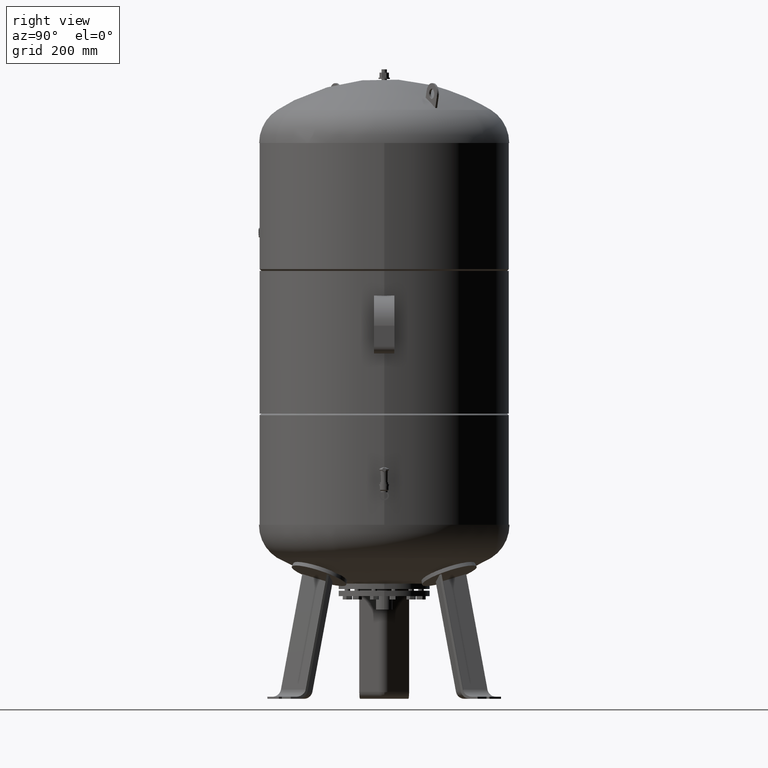
[diagram: clean part render]
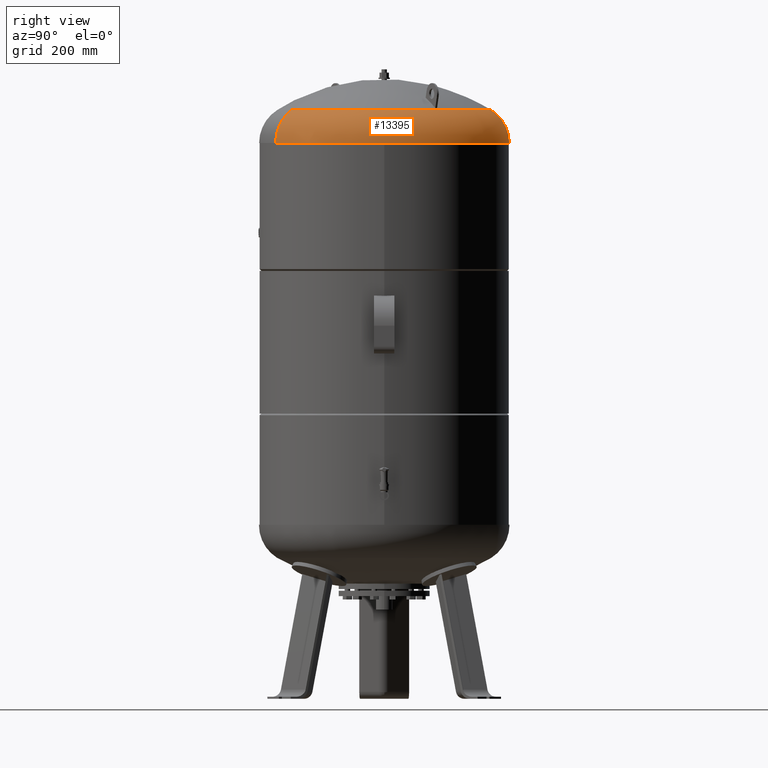
[diagram: same view with one face highlighted and labeled with its STEP entity id]
A machine part, right view. The second image highlights one B-rep face of the part: STEP entity #13395.
In plain terms, the highlighted toroidal blend (fillet) surface has major radius 254.5 mm and minor (blend) radius 115.5 mm.
Its self-contained STEP definition (entity closure, byte-faithful):
#13300=CARTESIAN_POINT('',(320.429399400242350,184.999999999999940,1641.206120388130300));
#13301=VERTEX_POINT('',#13300);
#13325=CARTESIAN_POINT('',(-184.999999999999970,320.429399400242350,1641.206120388130300));
#13326=VERTEX_POINT('',#13325);
#13334=CARTESIAN_POINT('',(-2.682575E-015,-4.159481E-014,1641.206120388130600));
#13335=DIRECTION('',(-1.060575E-016,-6.123234E-017,-1.000000000000000));
#13336=DIRECTION('',(0.866025403784439,0.500000000000000,-1.224647E-016));
#13337=AXIS2_PLACEMENT_3D('',#13334,#13335,#13336);
#13338=CIRCLE('',#13337,370.0);
#13339=EDGE_CURVE('',#13326,#13301,#13338,.T.);
#13344=CARTESIAN_POINT('',(-2.682575E-015,-4.159481E-014,1641.206120388130300));
#13345=DIRECTION('',(-1.420901E-017,-2.203186E-016,-1.0));
#13346=DIRECTION('',(0.500000000000000,-0.866025403784439,1.836970E-016));
#13347=AXIS2_PLACEMENT_3D('',#13344,#13345,#13346);
#13348=TOROIDAL_SURFACE('',#13347,254.500000000000030,115.500000000000000);
#13349=CARTESIAN_POINT('',(185.0,-320.429399400242400,1641.206120388130600));
#13350=VERTEX_POINT('',#13349);
#13351=CARTESIAN_POINT('',(157.965517241379270,-273.604301705966460,1739.014494274920500));
#13352=VERTEX_POINT('',#13351);
#13353=CARTESIAN_POINT('',(127.249999999999970,-220.403465263139680,1641.206120388130300));
#13354=DIRECTION('',(-0.866025403784439,-0.500000000000000,1.224647E-016));
#13355=DIRECTION('',(0.500000000000000,-0.866025403784439,0.0));
#13356=AXIS2_PLACEMENT_3D('',#13353,#13354,#13355);
#13357=CIRCLE('',#13356,115.499999999999990);
#13358=EDGE_CURVE('',#13350,#13352,#13357,.T.);
#13359=ORIENTED_EDGE('',*,*,#13358,.F.);
#13360=CARTESIAN_POINT('',(-2.682575E-015,-4.159481E-014,1641.206120388130600));
#13361=DIRECTION('',(-1.060575E-016,-6.123234E-017,-1.000000000000000));
#13362=DIRECTION('',(0.866025403784439,0.500000000000000,-1.224647E-016));
#13363=AXIS2_PLACEMENT_3D('',#13360,#13361,#13362);
#13364=CIRCLE('',#13363,370.0);
#13365=EDGE_CURVE('',#13301,#13350,#13364,.T.);
#13366=ORIENTED_EDGE('',*,*,#13365,.F.);
#13367=ORIENTED_EDGE('',*,*,#13339,.F.);
#13368=CARTESIAN_POINT('',(-157.965517241379250,273.604301705966410,1739.014494274920300));
#13369=VERTEX_POINT('',#13368);
#13370=CARTESIAN_POINT('',(-127.249999999999970,220.403465263139680,1641.206120388130300));
#13371=DIRECTION('',(0.866025403784439,0.500000000000000,-1.224647E-016));
#13372=DIRECTION('',(-0.500000000000000,0.866025403784439,0.0));
#13373=AXIS2_PLACEMENT_3D('',#13370,#13371,#13372);
#13374=CIRCLE('',#13373,115.500000000000010);
#13375=EDGE_CURVE('',#13326,#13369,#13374,.T.);
#13376=ORIENTED_EDGE('',*,*,#13375,.T.);
#13377=CARTESIAN_POINT('',(273.604301705966460,157.965517241379250,1739.014494274920500));
#13378=VERTEX_POINT('',#13377);
#13379=CARTESIAN_POINT('',(-1.292814E-015,-2.004580E-014,1739.014494274920500));
#13380=DIRECTION('',(-1.060575E-016,-6.123234E-017,-1.0));
#13381=DIRECTION('',(0.866025403784439,0.500000000000000,-1.224647E-016));
#13382=AXIS2_PLACEMENT_3D('',#13379,#13380,#13381);
#13383=CIRCLE('',#13382,315.931034482758610);
#13384=EDGE_CURVE('',#13369,#13378,#13383,.T.);
#13385=ORIENTED_EDGE('',*,*,#13384,.T.);
#13386=CARTESIAN_POINT('',(-1.292814E-015,-2.004580E-014,1739.014494274920500));
#13387=DIRECTION('',(-1.060575E-016,-6.123234E-017,-1.0));
#13388=DIRECTION('',(0.866025403784439,0.500000000000000,-1.224647E-016));
#13389=AXIS2_PLACEMENT_3D('',#13386,#13387,#13388);
#13390=CIRCLE('',#13389,315.931034482758610);
#13391=EDGE_CURVE('',#13378,#13352,#13390,.T.);
#13392=ORIENTED_EDGE('',*,*,#13391,.T.);
#13393=EDGE_LOOP('',(#13359,#13366,#13367,#13376,#13385,#13392));
#13394=FACE_OUTER_BOUND('',#13393,.T.);
#13395=ADVANCED_FACE('',(#13394),#13348,.T.);